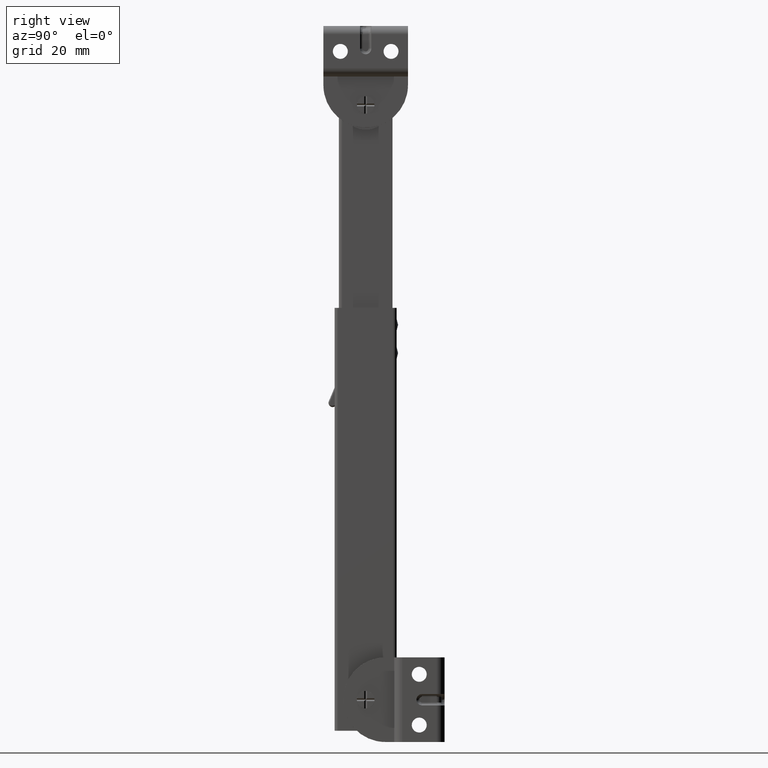
[diagram: clean part render]
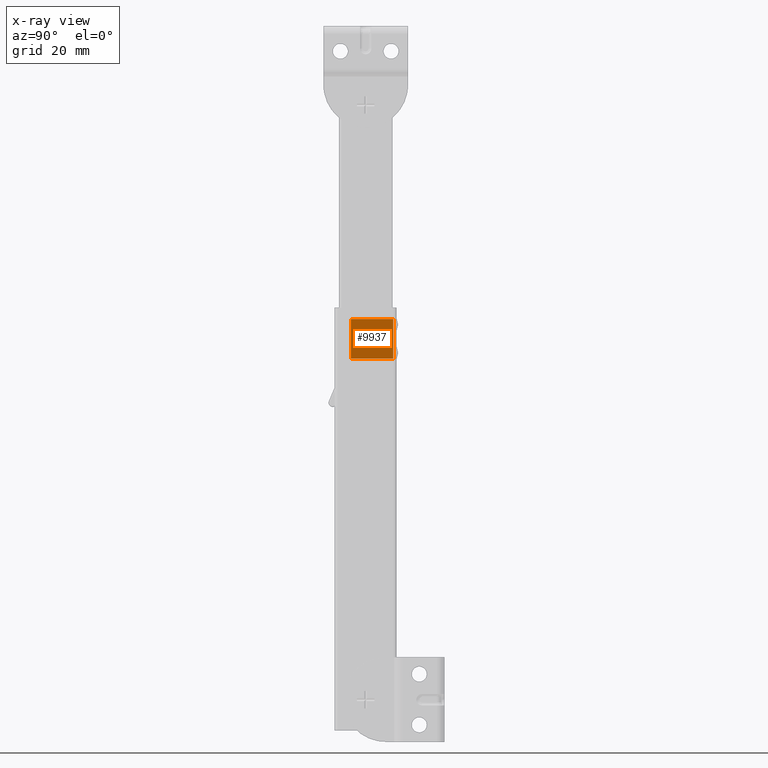
[diagram: x-ray — body ghosted, one internal face saturated and labeled with its STEP entity id]
A machine part, right view, then the same camera in x-ray: the body is ghosted and one INTERNAL B-rep face — a face not visible from any outside direction — is saturated and labeled: STEP entity #9937.
In plain terms, the highlighted face is a freeform B-spline surface patch.
Its self-contained STEP definition (entity closure, byte-faithful):
#9416=CARTESIAN_POINT('',(3.699997000000195,9.799999999999999,122.251673734263210));
#9417=VERTEX_POINT('',#9416);
#9435=CARTESIAN_POINT('',(3.699997000000235,9.799999999999999,123.748326265736790));
#9436=VERTEX_POINT('',#9435);
#9604=CARTESIAN_POINT('',(3.699997000000235,9.799999999999999,132.251673734263190));
#9605=VERTEX_POINT('',#9604);
#9623=CARTESIAN_POINT('',(3.699997000000230,9.799999999999999,133.748326265736810));
#9624=VERTEX_POINT('',#9623);
#9791=CARTESIAN_POINT('',(3.699997000000235,9.799999999999999,123.748326265736790));
#9792=CARTESIAN_POINT('',(3.699997000000195,9.799999999999999,122.251673734263210));
#9793=QUASI_UNIFORM_CURVE('',1,(#9791,#9792),.UNSPECIFIED.,.F.,.U.);
#9794=EDGE_CURVE('',#9436,#9417,#9793,.T.);
#9882=CARTESIAN_POINT('',(3.699997000000230,9.799999999999999,133.748326265736810));
#9883=CARTESIAN_POINT('',(3.699997000000235,9.799999999999999,132.251673734263190));
#9884=QUASI_UNIFORM_CURVE('',1,(#9882,#9883),.UNSPECIFIED.,.F.,.U.);
#9885=EDGE_CURVE('',#9624,#9605,#9884,.T.);
#9890=CARTESIAN_POINT('',(3.699997000000195,-6.026722746678479,120.300700022726600));
#9891=CARTESIAN_POINT('',(3.699997000000195,10.552936041227159,120.300700022726600));
#9892=CARTESIAN_POINT('',(3.699997000000195,-6.026722746678479,135.699300348584300));
#9893=CARTESIAN_POINT('',(3.699997000000195,10.552936041227159,135.699300348584300));
#9894=B_SPLINE_SURFACE_WITH_KNOTS('',1,1,((#9890,#9892),(#9891,#9893)),.UNSPECIFIED.,.F.,.F.,.U.,(2,2),(2,2),(0.0,16.579658787905640),(0.0,15.398600325857640),.UNSPECIFIED.);
#9895=CARTESIAN_POINT('',(3.699997000000235,-5.273787244531961,120.999999995801600));
#9896=VERTEX_POINT('',#9895);
#9897=CARTESIAN_POINT('',(3.699997000000235,-5.273787244531961,135.0));
#9898=VERTEX_POINT('',#9897);
#9899=CARTESIAN_POINT('',(3.699997000000235,-5.273787244531961,120.999999995801600));
#9900=CARTESIAN_POINT('',(3.699997000000235,-5.273787244531961,135.0));
#9901=QUASI_UNIFORM_CURVE('',1,(#9899,#9900),.UNSPECIFIED.,.F.,.U.);
#9902=EDGE_CURVE('',#9896,#9898,#9901,.T.);
#9903=ORIENTED_EDGE('',*,*,#9902,.T.);
#9904=CARTESIAN_POINT('',(3.699997000000235,9.799999999999999,135.0));
#9905=VERTEX_POINT('',#9904);
#9906=CARTESIAN_POINT('',(3.699997000000235,-5.273787244531961,135.0));
#9907=CARTESIAN_POINT('',(3.699997000000235,9.799999999999999,135.0));
#9908=QUASI_UNIFORM_CURVE('',1,(#9906,#9907),.UNSPECIFIED.,.F.,.U.);
#9909=EDGE_CURVE('',#9898,#9905,#9908,.T.);
#9910=ORIENTED_EDGE('',*,*,#9909,.T.);
#9911=CARTESIAN_POINT('',(3.699997000000235,9.799999999999999,135.0));
#9912=CARTESIAN_POINT('',(3.699997000000230,9.799999999999999,133.748326265736810));
#9913=QUASI_UNIFORM_CURVE('',1,(#9911,#9912),.UNSPECIFIED.,.F.,.U.);
#9914=EDGE_CURVE('',#9905,#9624,#9913,.T.);
#9915=ORIENTED_EDGE('',*,*,#9914,.T.);
#9916=ORIENTED_EDGE('',*,*,#9885,.T.);
#9917=CARTESIAN_POINT('',(3.699997000000235,9.799999999999999,132.251673734263190));
#9918=CARTESIAN_POINT('',(3.699997000000235,9.799999999999999,123.748326265736790));
#9919=QUASI_UNIFORM_CURVE('',1,(#9917,#9918),.UNSPECIFIED.,.F.,.U.);
#9920=EDGE_CURVE('',#9605,#9436,#9919,.T.);
#9921=ORIENTED_EDGE('',*,*,#9920,.T.);
#9922=ORIENTED_EDGE('',*,*,#9794,.T.);
#9923=CARTESIAN_POINT('',(3.699997000000235,9.799999999999999,120.999999995801600));
#9924=VERTEX_POINT('',#9923);
#9925=CARTESIAN_POINT('',(3.699997000000195,9.799999999999999,122.251673734263210));
#9926=CARTESIAN_POINT('',(3.699997000000235,9.799999999999999,120.999999995801600));
#9927=QUASI_UNIFORM_CURVE('',1,(#9925,#9926),.UNSPECIFIED.,.F.,.U.);
#9928=EDGE_CURVE('',#9417,#9924,#9927,.T.);
#9929=ORIENTED_EDGE('',*,*,#9928,.T.);
#9930=CARTESIAN_POINT('',(3.699997000000235,9.799999999999999,120.999999995801600));
#9931=CARTESIAN_POINT('',(3.699997000000235,-5.273787244531961,120.999999995801600));
#9932=QUASI_UNIFORM_CURVE('',1,(#9930,#9931),.UNSPECIFIED.,.F.,.U.);
#9933=EDGE_CURVE('',#9924,#9896,#9932,.T.);
#9934=ORIENTED_EDGE('',*,*,#9933,.T.);
#9935=EDGE_LOOP('',(#9903,#9910,#9915,#9916,#9921,#9922,#9929,#9934));
#9936=FACE_OUTER_BOUND('',#9935,.T.);
#9937=ADVANCED_FACE('',(#9936),#9894,.F.);